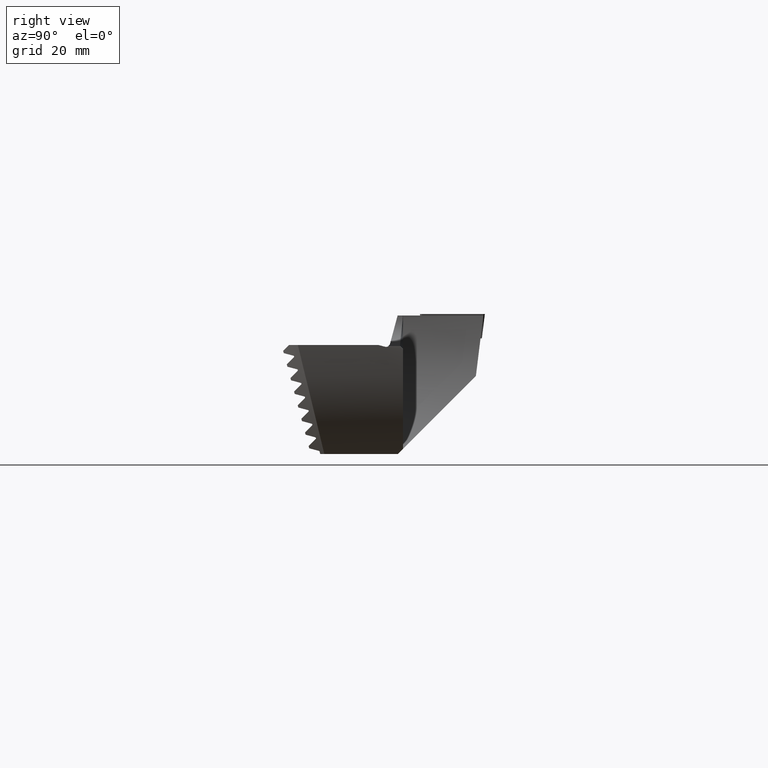
[diagram: clean part render]
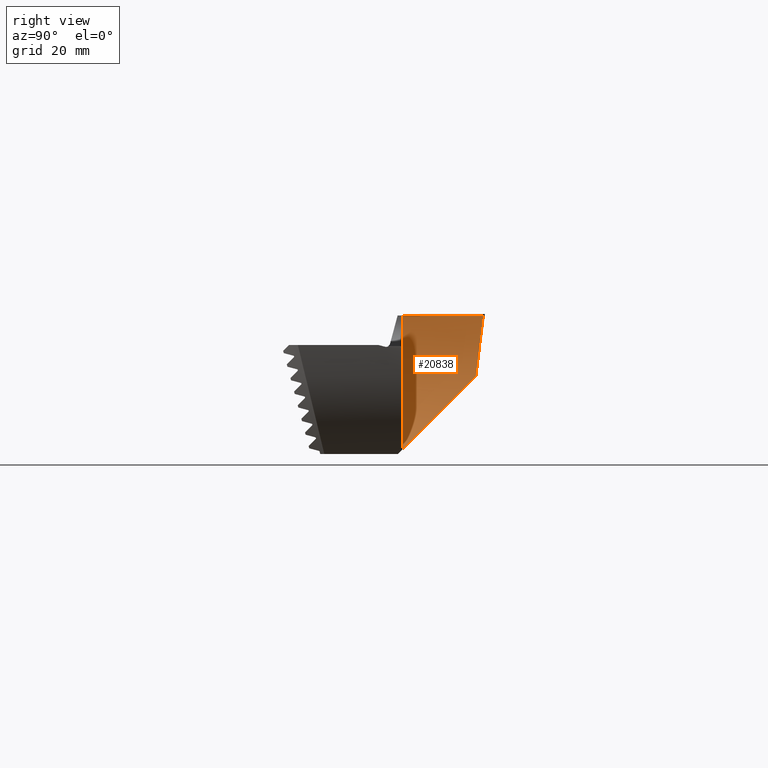
[diagram: same view with one face highlighted and labeled with its STEP entity id]
A machine part, right view. The second image highlights one B-rep face of the part: STEP entity #20838.
In plain terms, the highlighted cylindrical surface (partial cylindrical patch) has radius 40 mm, axis along (0, 1, 0).
Its self-contained STEP definition (entity closure, byte-faithful):
#364 = LINE ( 'NONE', #19657, #19191 ) ;
#486 = ORIENTED_EDGE ( 'NONE', *, *, #13931, .F. ) ;
#1120 = CARTESIAN_POINT ( 'NONE',  ( 19.20532290643341300, -16.00000000000007100, -0.9525367279617762400 ) ) ;
#1538 = CIRCLE ( 'NONE', #15011, 39.99999999999999300 ) ;
#1967 = EDGE_LOOP ( 'NONE', ( #18767, #20822, #8439, #12276, #486 ) ) ;
#2233 = VERTEX_POINT ( 'NONE', #16336 ) ;
#2718 = EDGE_CURVE ( 'NONE', #2233, #10716, #18641, .T. ) ;
#2896 = CARTESIAN_POINT ( 'NONE',  ( 59.20000000000001700, -16.00000000000007100, -0.3000000000000207500 ) ) ;
#3429 = EDGE_CURVE ( 'NONE', #17022, #14057, #21076, .T. ) ;
#4178 =( BOUNDED_CURVE ( )  B_SPLINE_CURVE ( 3, ( #8310, #19539, #23331, #12105 ),
 .UNSPECIFIED., .F., .F. ) 
 B_SPLINE_CURVE_WITH_KNOTS ( ( 4, 4 ),
 ( 1.870217778214939200, 2.280026802244602600 ),
 .UNSPECIFIED. ) 
 CURVE ( )  GEOMETRIC_REPRESENTATION_ITEM ( )  RATIONAL_B_SPLINE_CURVE ( ( 1.000000000000000000, 0.9860536121826026800, 0.9860536121826026800, 1.000000000000000000 ) ) 
 REPRESENTATION_ITEM ( '' )  );
#4330 = CARTESIAN_POINT ( 'NONE',  ( 20.97970791889576200, -1.748697946599171000, -12.09869794659904100 ) ) ;
#7847 = AXIS2_PLACEMENT_3D ( 'NONE', #2896, #23802, #16147 ) ;
#8310 = CARTESIAN_POINT ( 'NONE',  ( 20.97970791889576200, -1.748697946599171000, -12.09869794659904100 ) ) ;
#8439 = ORIENTED_EDGE ( 'NONE', *, *, #3429, .F. ) ;
#8504 = CARTESIAN_POINT ( 'NONE',  ( 28.84546986033220500, -16.00000000000007500, -26.35000000000000100 ) ) ;
#10060 = CARTESIAN_POINT ( 'NONE',  ( 59.20000000000001700, -16.00000000000007100, -0.3000000000000207500 ) ) ;
#10074 = FACE_OUTER_BOUND ( 'NONE', #1967, .T. ) ;
#10716 = VERTEX_POINT ( 'NONE', #4330 ) ;
#11970 = DIRECTION ( 'NONE',  ( 0.0000000000000000000, 0.0000000000000000000, 1.000000000000000000 ) ) ;
#12105 = CARTESIAN_POINT ( 'NONE',  ( 28.84546986033220500, -16.00000000000007500, -26.35000000000000100 ) ) ;
#12276 = ORIENTED_EDGE ( 'NONE', *, *, #13482, .F. ) ;
#13482 = EDGE_CURVE ( 'NONE', #16111, #17022, #1538, .T. ) ;
#13603 = EDGE_CURVE ( 'NONE', #14057, #2233, #364, .T. ) ;
#13931 = EDGE_CURVE ( 'NONE', #10716, #16111, #4178, .T. ) ;
#14057 = VERTEX_POINT ( 'NONE', #17961 ) ;
#14485 = CYLINDRICAL_SURFACE ( 'NONE', #7847, 39.99999999999999300 ) ;
#14837 = AXIS2_PLACEMENT_3D ( 'NONE', #16786, #16686, #16604 ) ;
#15011 = AXIS2_PLACEMENT_3D ( 'NONE', #10060, #23208, #11970 ) ;
#16111 = VERTEX_POINT ( 'NONE', #8504 ) ;
#16147 = DIRECTION ( 'NONE',  ( 0.0000000000000000000, 0.0000000000000000000, 1.000000000000000000 ) ) ;
#16208 = DIRECTION ( 'NONE',  ( 0.0000000000000000000, 1.000000000000000000, 1.321484941883489300E-018 ) ) ;
#16336 = CARTESIAN_POINT ( 'NONE',  ( 19.20000000000000600, -0.3000000000000051500, -0.2999999999999964400 ) ) ;
#16604 = DIRECTION ( 'NONE',  ( 0.0000000000000000000, 0.0000000000000000000, 1.000000000000000000 ) ) ;
#16686 = DIRECTION ( 'NONE',  ( 0.0000000000000000000, 1.000000000000000000, 1.321484941883489200E-018 ) ) ;
#16786 = CARTESIAN_POINT ( 'NONE',  ( 59.20000000000001700, -16.00000000000007100, -0.3000000000000207500 ) ) ;
#17022 = VERTEX_POINT ( 'NONE', #1120 ) ;
#17473 = CARTESIAN_POINT ( 'NONE',  ( 20.97970791889576200, -1.748697946599171000, -12.09869794659904100 ) ) ;
#17498 = CARTESIAN_POINT ( 'NONE',  ( 19.79769306371014500, -1.278558583485038100, -8.269720103970176000 ) ) ;
#17804 = CARTESIAN_POINT ( 'NONE',  ( 19.20000000000000300, -0.7920311567651000500, -4.307272194051982700 ) ) ;
#17961 = CARTESIAN_POINT ( 'NONE',  ( 19.20000000000001000, -16.00000000000007500, -0.2999999999999964400 ) ) ;
#18641 =( BOUNDED_CURVE ( )  B_SPLINE_CURVE ( 3, ( #20731, #17804, #17498, #17473 ),
 .UNSPECIFIED., .F., .F. ) 
 B_SPLINE_CURVE_WITH_KNOTS ( ( 4, 4 ),
 ( 1.570796326794895900, 1.870217778214939400 ),
 .UNSPECIFIED. ) 
 CURVE ( )  GEOMETRIC_REPRESENTATION_ITEM ( )  RATIONAL_B_SPLINE_CURVE ( ( 1.000000000000000000, 0.9925428434500768200, 0.9925428434500768200, 1.000000000000000000 ) ) 
 REPRESENTATION_ITEM ( '' )  );
#18767 = ORIENTED_EDGE ( 'NONE', *, *, #2718, .F. ) ;
#19191 = VECTOR ( 'NONE', #16208, 1000.000000000000000 ) ;
#19539 = CARTESIAN_POINT ( 'NONE',  ( 22.60282749215532800, -7.006575082984351600, -17.35657508298423600 ) ) ;
#19657 = CARTESIAN_POINT ( 'NONE',  ( 19.20000000000000600, -16.00000000000007500, -0.2999999999999999300 ) ) ;
#20731 = CARTESIAN_POINT ( 'NONE',  ( 19.20000000000000600, -0.3000000000000051500, -0.2999999999999964400 ) ) ;
#20822 = ORIENTED_EDGE ( 'NONE', *, *, #13603, .F. ) ;
#20838 = ADVANCED_FACE ( 'NONE', ( #10074 ), #14485, .F. ) ;
#21076 = CIRCLE ( 'NONE', #14837, 39.99999999999998600 ) ;
#23208 = DIRECTION ( 'NONE',  ( 0.0000000000000000000, 1.000000000000000000, 1.321484941883489200E-018 ) ) ;
#23331 = CARTESIAN_POINT ( 'NONE',  ( 25.26183164238802400, -11.82419753181382700, -22.17419753181373600 ) ) ;
#23802 = DIRECTION ( 'NONE',  ( 0.0000000000000000000, 1.000000000000000000, 1.321484941883489200E-018 ) ) ;